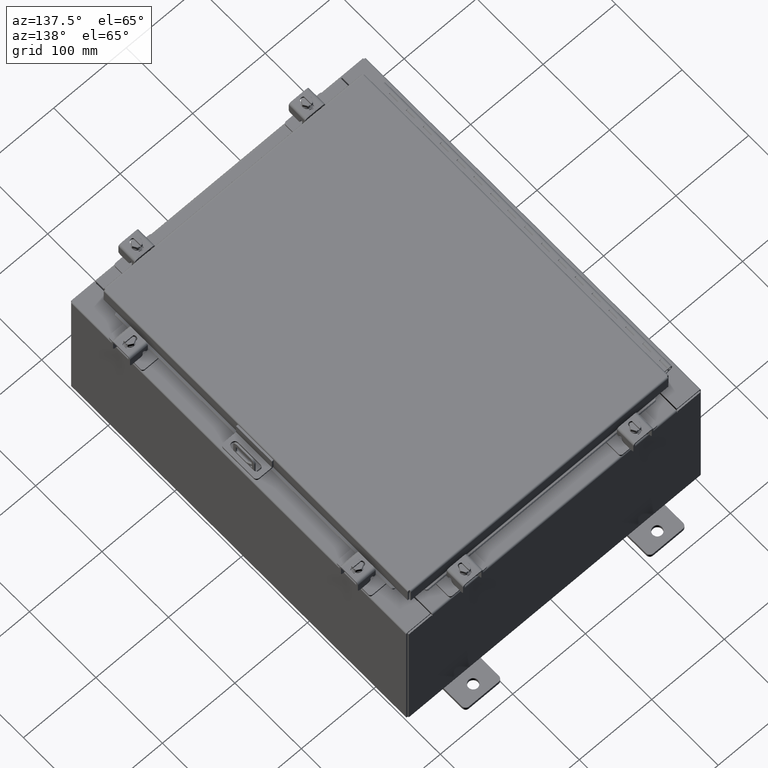
[diagram: clean part render]
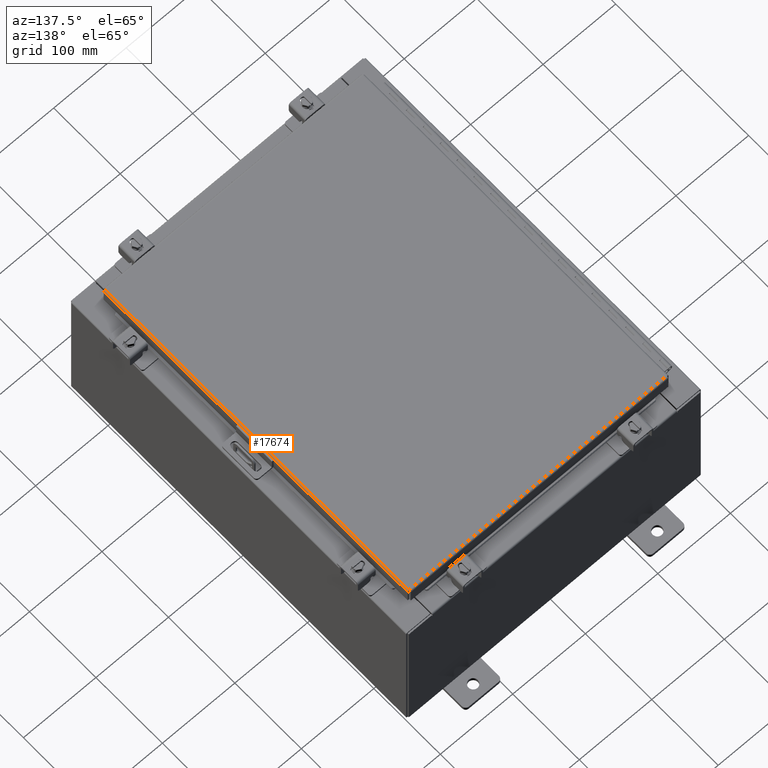
[diagram: same view with one face highlighted and labeled with its STEP entity id]
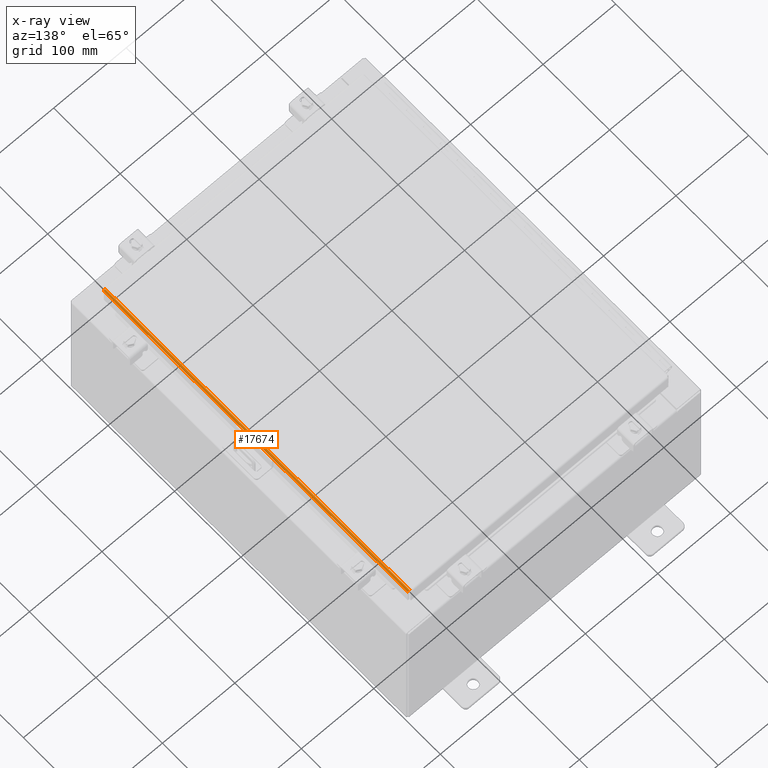
[diagram: x-ray of the same camera — body ghosted, the highlighted face saturated]
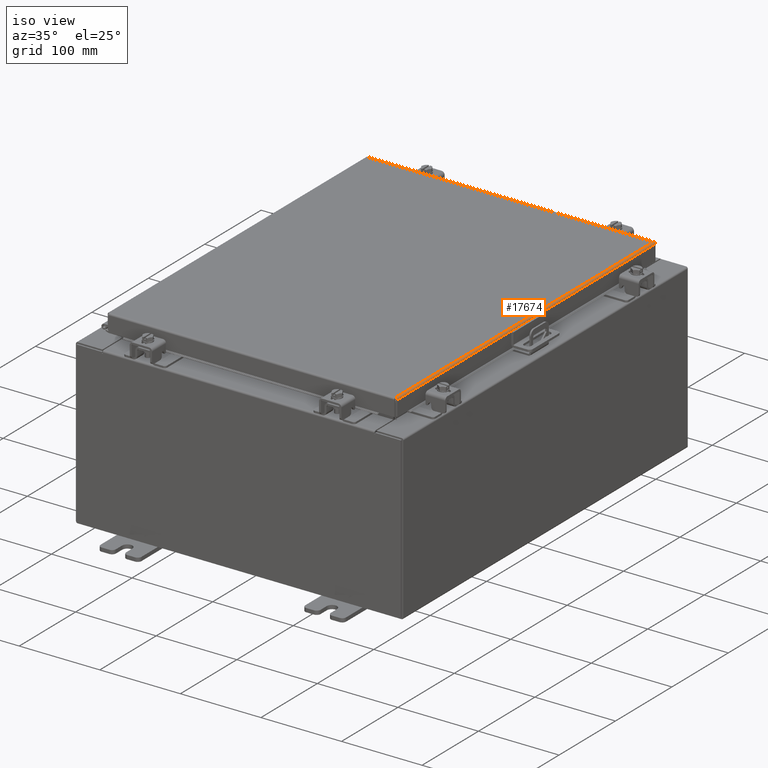
[diagram: same view with one face highlighted and labeled with its STEP entity id]
A machine part, auxiliary view. The second image highlights one B-rep face of the part: STEP entity #17674.
The next image is the same camera in x-ray: the body ghosted, the highlighted face saturated — about 0% of this face is hidden behind the body in this view.
A second angle (iso view) of the same face is appended — the face is thin or edge-on in the first view.
In plain terms, the highlighted cylindrical surface (edge-blend (fillet) strip) has radius 2.2276 mm, axis along (-0, -1, -0).
Its self-contained STEP definition (entity closure, byte-faithful):
#107 = DIRECTION ( 'NONE',  ( -0.0000000000000000000, -1.000000000000000000, -0.0000000000000000000 ) ) ;
#134 = CARTESIAN_POINT ( 'NONE',  ( 7.034467384578531000, -9.005919288125422600, -0.01106893374133176100 ) ) ;
#442 = CARTESIAN_POINT ( 'NONE',  ( 7.075717403743816200, 9.005348220313559100, -0.06474471054169121700 ) ) ;
#1283 = ORIENTED_EDGE ( 'NONE', *, *, #24647, .F. ) ;
#1346 = LINE ( 'NONE', #11878, #18768 ) ;
#1687 = B_SPLINE_CURVE_WITH_KNOTS ( 'NONE', 3,
 ( #25059, #2342, #22774, #11484, #27366, #13783, #134, #16073, #2443, #18355 ),
 .UNSPECIFIED., .F., .F.,
 ( 4, 2, 2, 2, 4 ),
 ( 0.0000000000000000000, 0.2500000000000000000, 0.5000000000000000000, 0.7500000000000000000, 1.000000000000000000 ),
 .UNSPECIFIED. ) ;
#1760 = CYLINDRICAL_SURFACE ( 'NONE', #11444, 0.08770000000000026400 ) ;
#2342 = CARTESIAN_POINT ( 'NONE',  ( 7.078000000000001200, -9.005253042344913100, -0.07622009684500735700 ) ) ;
#2443 = CARTESIAN_POINT ( 'NONE',  ( 7.001779903154995200, -9.006204822031357100, -2.038214714022946300E-016 ) ) ;
#2450 = FACE_OUTER_BOUND ( 'NONE', #11726, .T. ) ;
#2460 = CARTESIAN_POINT ( 'NONE',  ( 6.990300000000002200, -9.006299999999997800, -2.048885995248197400E-016 ) ) ;
#2757 = CARTESIAN_POINT ( 'NONE',  ( 7.078000000000002100, 9.005157864376270600, -0.08770000000000007000 ) ) ;
#3733 = VERTEX_POINT ( 'NONE', #13536 ) ;
#4490 = VERTEX_POINT ( 'NONE', #21708 ) ;
#4598 = DIRECTION ( 'NONE',  ( 1.000000000000000000, 0.0000000000000000000, 2.725618009642215600E-015 ) ) ;
#5768 = EDGE_CURVE ( 'NONE', #4490, #3733, #10977, .T. ) ;
#9279 = CARTESIAN_POINT ( 'NONE',  ( 6.990300000000002200, -9.006299999999997800, -2.048885995248197400E-016 ) ) ;
#9504 = CARTESIAN_POINT ( 'NONE',  ( 7.013255289458311600, 9.006109644062712900, -0.002282596256188923400 ) ) ;
#10891 = ORIENTED_EDGE ( 'NONE', *, *, #12446, .F. ) ;
#10977 = B_SPLINE_CURVE_WITH_KNOTS ( 'NONE', 3,
 ( #20713, #27573, #9504, #25367, #11778, #27682, #14086, #442, #16373, #2757 ),
 .UNSPECIFIED., .F., .F.,
 ( 4, 2, 2, 2, 4 ),
 ( 0.0000000000000000000, 0.2500000000000000000, 0.5000000000000000000, 0.7500000000000000000, 1.000000000000000000 ),
 .UNSPECIFIED. ) ;
#11444 = AXIS2_PLACEMENT_3D ( 'NONE', #25029, #107, #4598 ) ;
#11484 = CARTESIAN_POINT ( 'NONE',  ( 7.066931066258666400, -9.005538576250842200, -0.04353261542147222900 ) ) ;
#11726 = EDGE_LOOP ( 'NONE', ( #1283, #10891, #13203, #26184 ) ) ;
#11778 = CARTESIAN_POINT ( 'NONE',  ( 7.044195747341802900, 9.005824110156782000, -0.01756921792167976500 ) ) ;
#11878 = CARTESIAN_POINT ( 'NONE',  ( 7.078000000000002100, 0.0000000000000000000, -0.08770000000000007000 ) ) ;
#12446 = EDGE_CURVE ( 'NONE', #25676, #24180, #1687, .T. ) ;
#13203 = ORIENTED_EDGE ( 'NONE', *, *, #26085, .F. ) ;
#13536 = CARTESIAN_POINT ( 'NONE',  ( 7.078000000000002100, 9.005157864376270600, -0.08770000000000007000 ) ) ;
#13783 = CARTESIAN_POINT ( 'NONE',  ( 7.044195747341802000, -9.005824110156780200, -0.01756921792167976500 ) ) ;
#14086 = CARTESIAN_POINT ( 'NONE',  ( 7.066931066258670000, 9.005538576250849300, -0.04353261542147223600 ) ) ;
#16073 = CARTESIAN_POINT ( 'NONE',  ( 7.013255289458314200, -9.006109644062707500, -0.002282596256188923000 ) ) ;
#16373 = CARTESIAN_POINT ( 'NONE',  ( 7.078000000000003800, 9.005253042344914900, -0.07622009684500738500 ) ) ;
#17674 = ADVANCED_FACE ( 'NONE', ( #2450 ), #1760, .T. ) ;
#18355 = CARTESIAN_POINT ( 'NONE',  ( 6.990300000000002200, -9.006299999999997800, -2.048885995248197400E-016 ) ) ;
#18768 = VECTOR ( 'NONE', #27769, 39.37007874015748100 ) ;
#20713 = CARTESIAN_POINT ( 'NONE',  ( 6.990300000000002200, 9.006300000000001300, -7.512581982576723400E-016 ) ) ;
#21708 = CARTESIAN_POINT ( 'NONE',  ( 6.990300000000002200, 9.006300000000001300, -7.512581982576723400E-016 ) ) ;
#22774 = CARTESIAN_POINT ( 'NONE',  ( 7.075717403743812600, -9.005348220313557300, -0.06474471054169121700 ) ) ;
#23426 = LINE ( 'NONE', #9279, #29519 ) ;
#24180 = VERTEX_POINT ( 'NONE', #2460 ) ;
#24647 = EDGE_CURVE ( 'NONE', #24180, #4490, #23426, .T. ) ;
#25029 = CARTESIAN_POINT ( 'NONE',  ( 6.990300000000002200, -9.006299999999997800, -0.08770000000000030500 ) ) ;
#25059 = CARTESIAN_POINT ( 'NONE',  ( 7.078000000000002100, -9.005157864376267100, -0.08770000000000007000 ) ) ;
#25367 = CARTESIAN_POINT ( 'NONE',  ( 7.034467384578526600, 9.005919288125422600, -0.01106893374133176100 ) ) ;
#25676 = VERTEX_POINT ( 'NONE', #26198 ) ;
#26085 = EDGE_CURVE ( 'NONE', #3733, #25676, #1346, .T. ) ;
#26184 = ORIENTED_EDGE ( 'NONE', *, *, #5768, .F. ) ;
#26198 = CARTESIAN_POINT ( 'NONE',  ( 7.078000000000002100, -9.005157864376267100, -0.08770000000000007000 ) ) ;
#27366 = CARTESIAN_POINT ( 'NONE',  ( 7.060430782078323200, -9.005633754219490000, -0.03380425265820009200 ) ) ;
#27442 = DIRECTION ( 'NONE',  ( 0.0000000000000000000, 1.000000000000000000, 0.0000000000000000000 ) ) ;
#27573 = CARTESIAN_POINT ( 'NONE',  ( 7.001779903154997900, 9.006204822031357100, -2.037881236484656600E-016 ) ) ;
#27682 = CARTESIAN_POINT ( 'NONE',  ( 7.060430782078322300, 9.005633754219495300, -0.03380425265820009900 ) ) ;
#27769 = DIRECTION ( 'NONE',  ( 0.0000000000000000000, -1.000000000000000000, 0.0000000000000000000 ) ) ;
#29519 = VECTOR ( 'NONE', #27442, 39.37007874015748100 ) ;